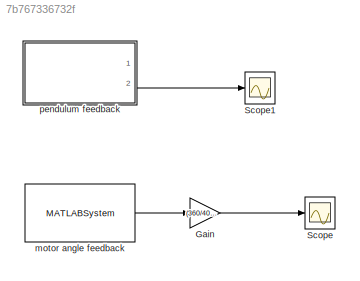
MODEL slx_7b767336732f
KIND model
CONFIG AbsTol = auto
CONFIG EnableMultiTasking = on
CONFIG FixedStep = auto
CONFIG MaxStep = auto
CONFIG MinStep = auto
CONFIG RelTol = 1e-3
CONFIG SampleTimeConstraint = Unconstrained
CONFIG Solver = ode45
CONFIG SolverName = ode45
CONFIG StartTime = 0.0
CONFIG StopTime = 10.0
BLOCK [Gain] Gain
  Gain = (360/400)/2
BLOCK [Scope] Scope
  Floating = off
  NumInputPorts = 1
  Ports = [1]
  ScopeSpecificationString = Simulink.scopes.TimeScopeBlockCfg('CurrentConfiguration', extmgr.ConfigurationSet(extmgr.Configuration('Core','General UI',true),extmgr.Configuration('Core','Source UI',true),extmgr.Configuration('Sources','WiredSimulink',true),extmgr.Configuration('Visuals','Time Domain',true,'SerializedDisplays',{struct('MinYLimReal','-16.03125','MaxYLimReal','40.78125','YLabelReal','','MinYLimMag','0.00000','Ma...<+1330ch>
BLOCK [Scope] Scope1
  Floating = off
  NumInputPorts = 1
  Ports = [1]
  ScopeSpecificationString = Simulink.scopes.TimeScopeBlockCfg('CurrentConfiguration', extmgr.ConfigurationSet(extmgr.Configuration('Core','General UI',true),extmgr.Configuration('Core','Source UI',true),extmgr.Configuration('Sources','WiredSimulink',true,'DataLoggingVariableName','ScopeData1'),extmgr.Configuration('Visuals','Time Domain',true),extmgr.Configuration('Tools','Plot Navigation',true),extmgr.Configuration('Tools',...<+40ch>
BLOCK [MATLABSystem] motor angle feedback
  Encoder = 1
  MaskDisplay = disp('Encoder');\nport_label('output',1,'y');
  MaskType = Encoder_arduino
  PinA = 3
  PinB = 5
  Ports = [0, 1]
  SampleTime = 0.01
  System = Encoder_arduino
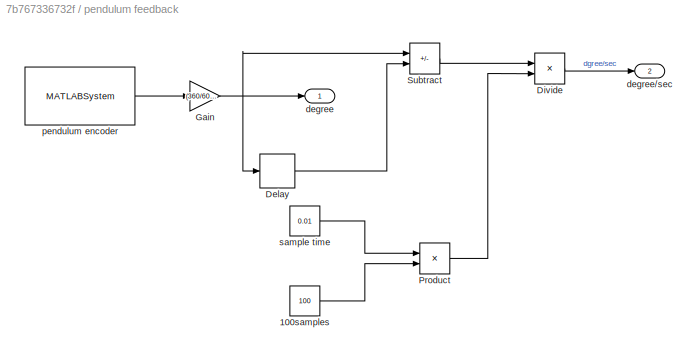
BLOCK [SubSystem] pendulum feedback
  Ports = [0, 2]
  RequestExecContextInheritance = off
BLOCK [Constant] pendulum feedback/100samples
  Value = 100
BLOCK [Delay] pendulum feedback/Delay
  DelayLength = 100
  InputPortMap = u0
  Ports = [1, 1]
BLOCK [Product] pendulum feedback/Divide
  Inputs = */
  Ports = [2, 1]
BLOCK [Gain] pendulum feedback/Gain
  Gain = (360/600)/2
BLOCK [Product] pendulum feedback/Product
  Ports = [2, 1]
BLOCK [Sum] pendulum feedback/Subtract
  IconShape = rectangular
  Inputs = +-
  Ports = [2, 1]
BLOCK [Outport] pendulum feedback/degree
BLOCK [Outport] pendulum feedback/degree//sec
  Port = 2
BLOCK [MATLABSystem] pendulum feedback/pendulum encoder
  Encoder = 0
  MaskDisplay = disp('Encoder');\nport_label('output',1,'y');
  MaskType = Encoder_arduino
  PinA = 2
  PinB = 4
  Ports = [0, 1]
  SampleTime = 0.01
  System = Encoder_arduino
BLOCK [Constant] pendulum feedback/sample time
  Value = 0.01
LINE Gain:1 -> Scope:1
LINE motor angle feedback:1 -> Gain:1
LINE pendulum feedback/100samples:1 -> pendulum feedback/Product:2
LINE pendulum feedback/Delay:1 -> pendulum feedback/Subtract:2
LINE pendulum feedback/Divide:1 -> pendulum feedback/degree//sec:1
NET pendulum feedback/Gain:1 -> pendulum feedback/Delay:1, pendulum feedback/Subtract:1, pendulum feedback/degree:1
LINE pendulum feedback/Product:1 -> pendulum feedback/Divide:2
LINE pendulum feedback/Subtract:1 -> pendulum feedback/Divide:1
LINE pendulum feedback/pendulum encoder:1 -> pendulum feedback/Gain:1
LINE pendulum feedback/sample time:1 -> pendulum feedback/Product:1
LINE pendulum feedback:2 -> Scope1:1
note: NET lines group one-source signal fan-out (src -> all destinations, sorted); 1:1 wires keep LINE
